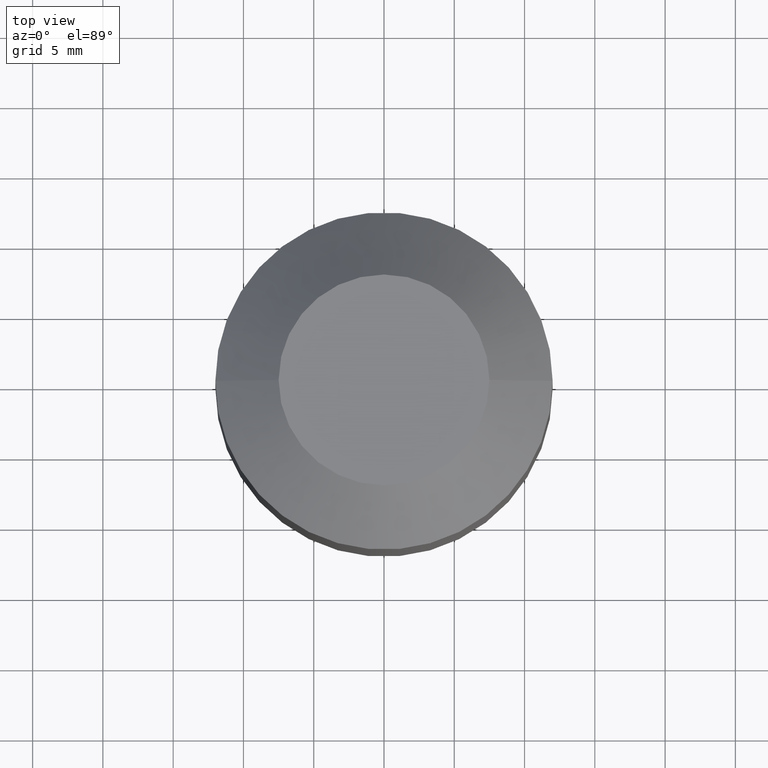
[diagram: clean part render]
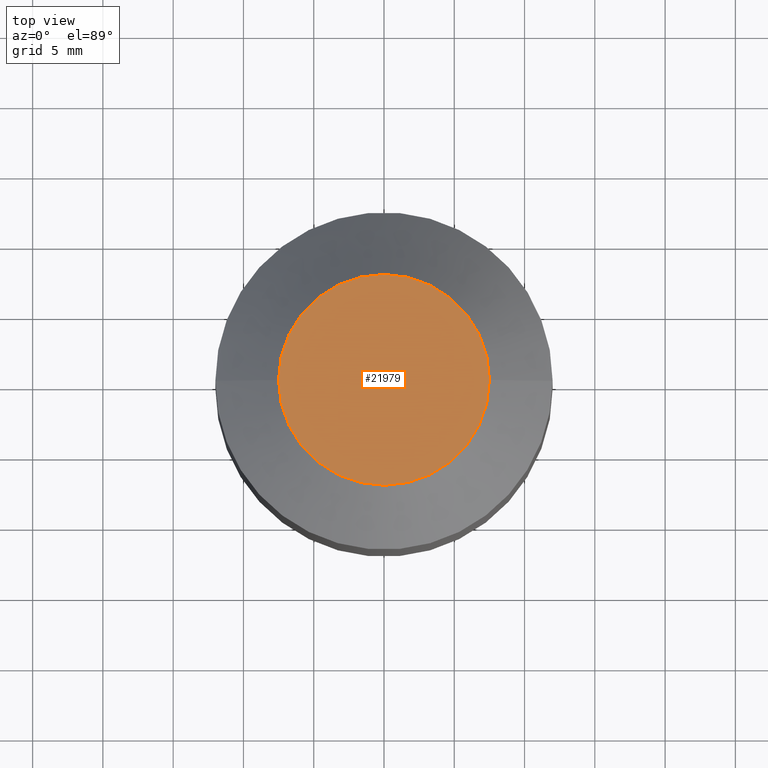
[diagram: same view with one face highlighted and labeled with its STEP entity id]
A machine part, top view. The second image highlights one B-rep face of the part: STEP entity #21979.
In plain terms, the highlighted planar face has unit normal (0, 0, 1).
Its self-contained STEP definition (entity closure, byte-faithful):
#663 = CIRCLE ( 'NONE', #18554, 7.500000000000000000 ) ;
#680 = VERTEX_POINT ( 'NONE', #8597 ) ;
#837 = AXIS2_PLACEMENT_3D ( 'NONE', #18122, #20229, #13082 ) ;
#5986 = ORIENTED_EDGE ( 'NONE', *, *, #21578, .T. ) ;
#6783 = AXIS2_PLACEMENT_3D ( 'NONE', #18625, #21987, #20410 ) ;
#6911 = CARTESIAN_POINT ( 'NONE',  ( -7.500000000000000000, 0.000000000000000000, 39.44999999999999574 ) ) ;
#6993 = FACE_OUTER_BOUND ( 'NONE', #19402, .T. ) ;
#8597 = CARTESIAN_POINT ( 'NONE',  ( 7.500000000000000000, 1.194030629168668286E-15, 39.44999999999999574 ) ) ;
#9369 = DIRECTION ( 'NONE',  ( 0.000000000000000000, 0.000000000000000000, 1.000000000000000000 ) ) ;
#9412 = ORIENTED_EDGE ( 'NONE', *, *, #17273, .T. ) ;
#13082 = DIRECTION ( 'NONE',  ( 1.000000000000000000, 0.000000000000000000, 0.000000000000000000 ) ) ;
#14373 = DIRECTION ( 'NONE',  ( 1.000000000000000000, 0.000000000000000000, 0.000000000000000000 ) ) ;
#15145 = CIRCLE ( 'NONE', #837, 7.500000000000000000 ) ;
#17273 = EDGE_CURVE ( 'NONE', #680, #20757, #15145, .T. ) ;
#17622 = CARTESIAN_POINT ( 'NONE',  ( 0.000000000000000000, 0.000000000000000000, 39.44999999999999574 ) ) ;
#18122 = CARTESIAN_POINT ( 'NONE',  ( 0.000000000000000000, 0.000000000000000000, 39.44999999999999574 ) ) ;
#18554 = AXIS2_PLACEMENT_3D ( 'NONE', #17622, #9369, #14373 ) ;
#18625 = CARTESIAN_POINT ( 'NONE',  ( 0.000000000000000000, 0.000000000000000000, 39.44999999999999574 ) ) ;
#19050 = PLANE ( 'NONE',  #6783 ) ;
#19402 = EDGE_LOOP ( 'NONE', ( #5986, #9412 ) ) ;
#20229 = DIRECTION ( 'NONE',  ( 0.000000000000000000, 0.000000000000000000, 1.000000000000000000 ) ) ;
#20410 = DIRECTION ( 'NONE',  ( 1.000000000000000000, 0.000000000000000000, 0.000000000000000000 ) ) ;
#20757 = VERTEX_POINT ( 'NONE', #6911 ) ;
#21578 = EDGE_CURVE ( 'NONE', #20757, #680, #663, .T. ) ;
#21979 = ADVANCED_FACE ( 'NONE', ( #6993 ), #19050, .T. ) ;
#21987 = DIRECTION ( 'NONE',  ( 0.000000000000000000, 0.000000000000000000, 1.000000000000000000 ) ) ;